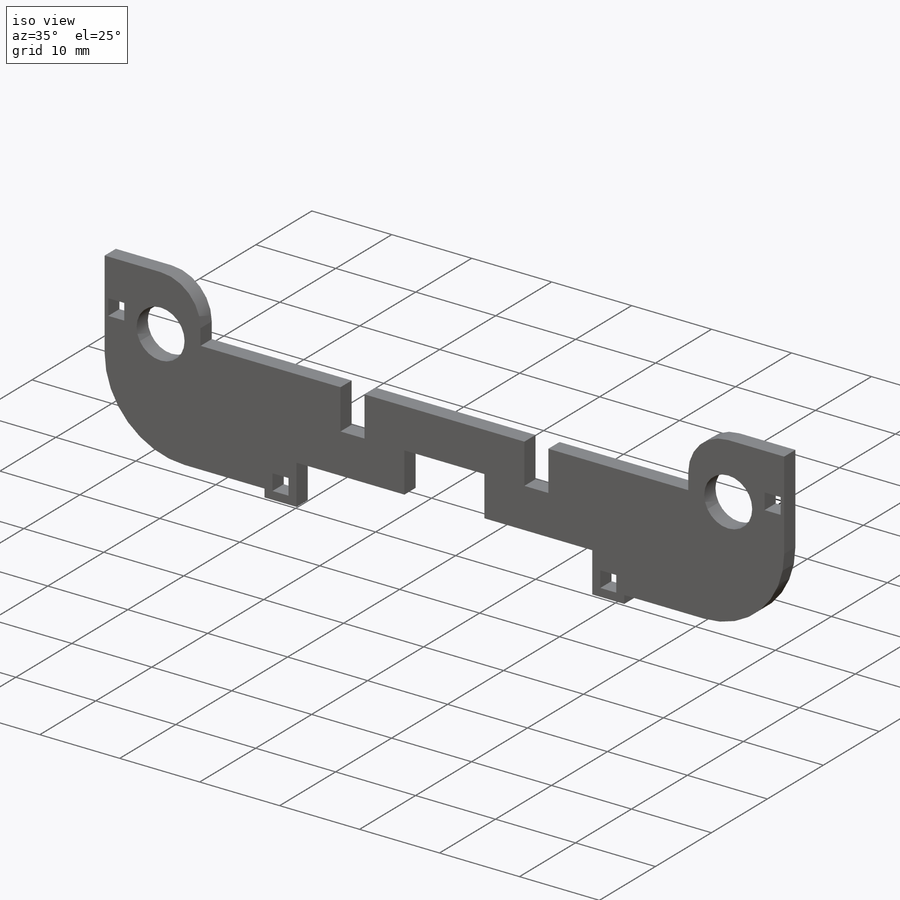
[diagram: iso view]
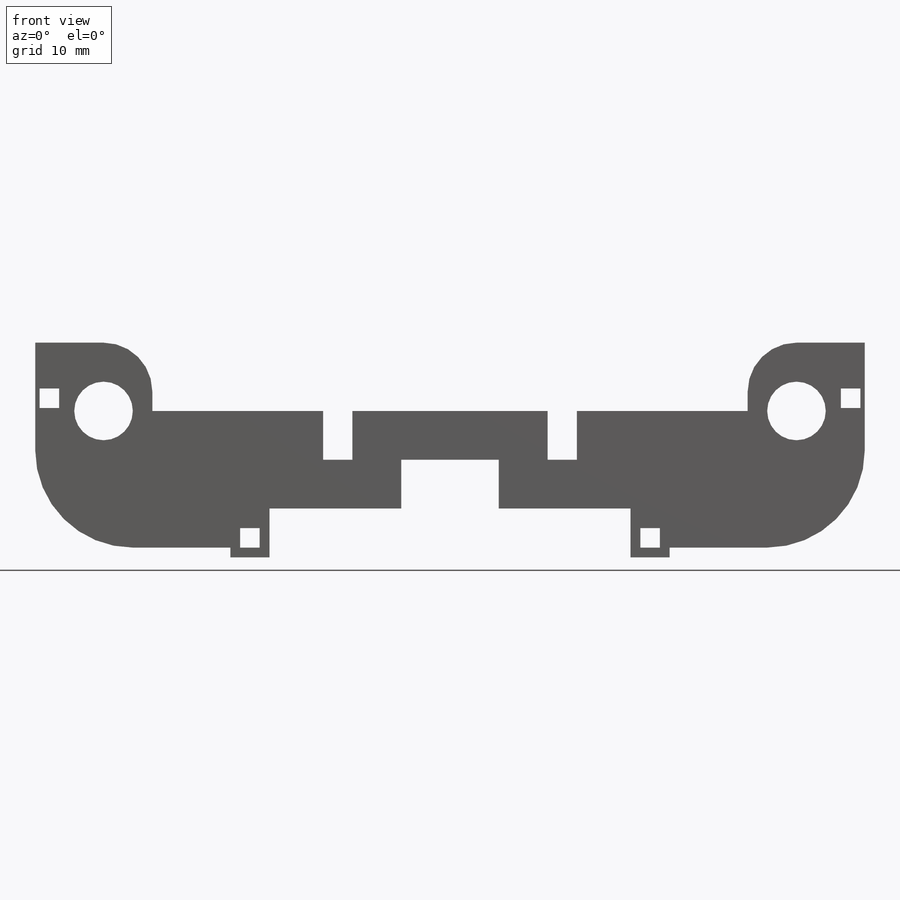
[diagram: front view]
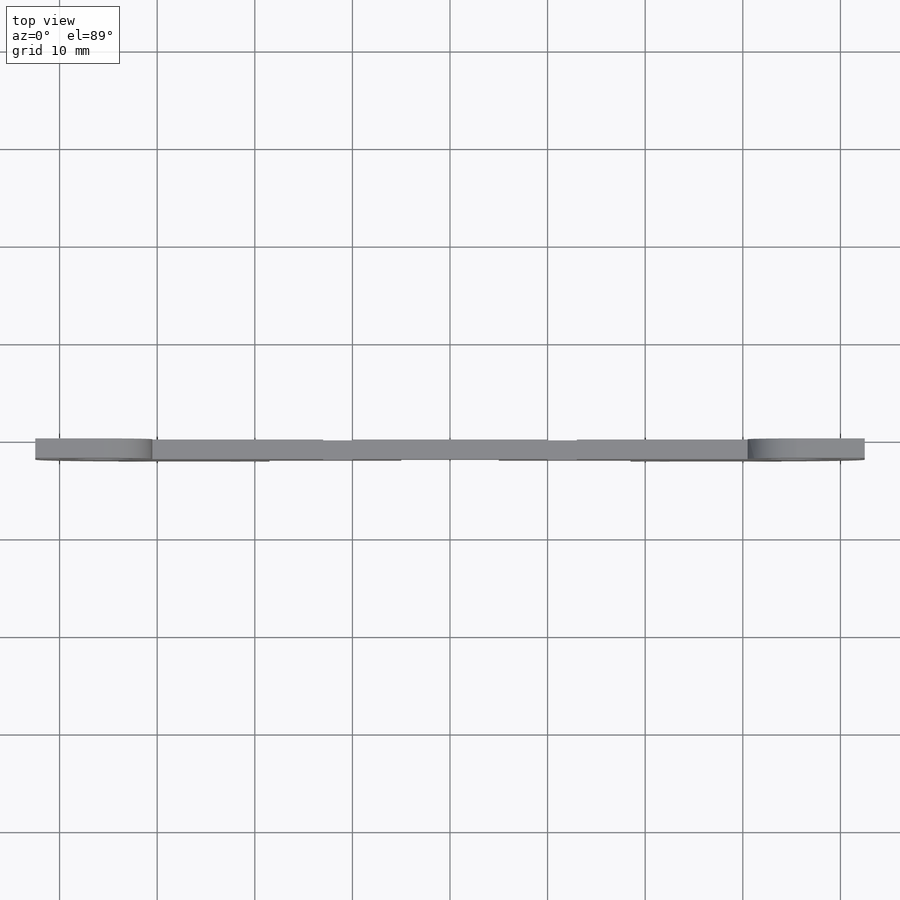
[diagram: top view]
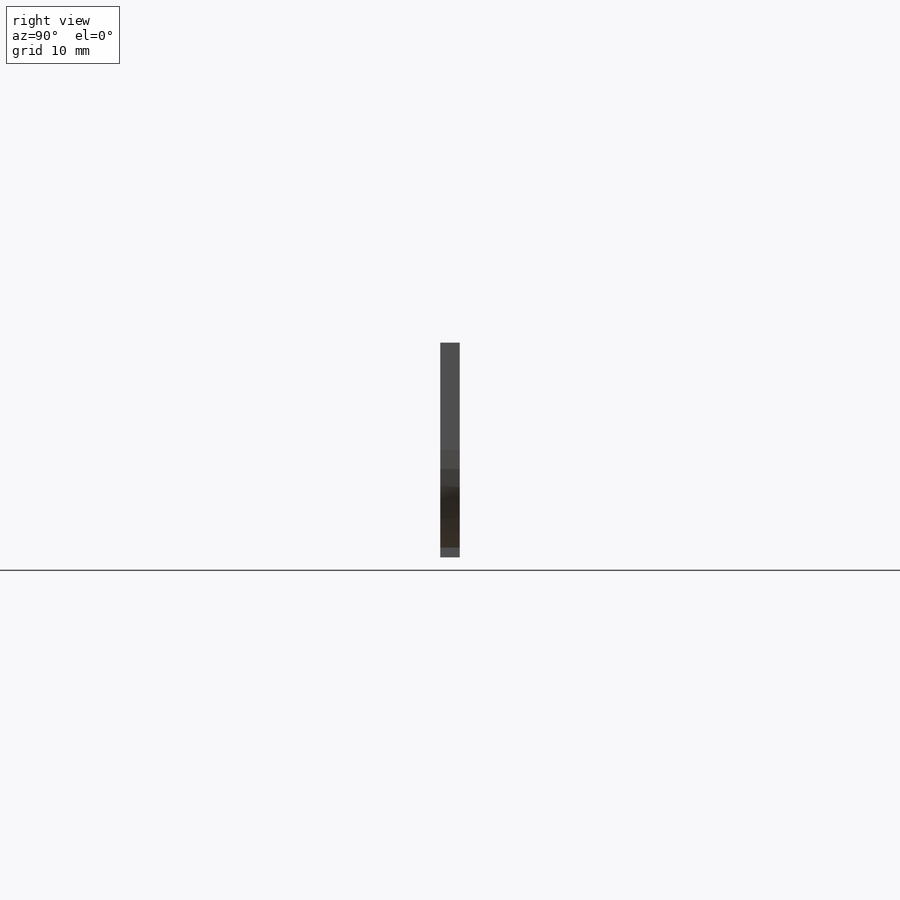
[diagram: right view]
SOLIDWORKS PART (.sldprt)
format: sldprt  version: not decoded by parser v0  size: 291,840 bytes
history: native  units: mm
features: fillet x4, material x1, sketch x1, extrude x1 (+11 scaffold rows collapsed)
feature tree (18):
  scaffold x11  (default folders/planes/origin — collapsed)
  material  "Material <not specified>"
  sketch  "Sketch1"  dims[c1.D5=~4.140905mm c1.D6=6.0mm c2.D5=6.0mm c2.D22=~5.756268mm c2.D23=6.0mm c2.D1=~27.288625mm c2.D2=~120.586222mm c3.D1=10.0mm c3.D2=71.0mm c3.D3=5.0mm c3.D4=26.0mm c3.D5=10.0mm c3.D7=7.0mm c3.D8=~1.619526mm c3.D9=~1.559544mm c4.D8=4.7mm c4.D9=0.45mm c4.D10=2.0mm c4.D11=10.0mm c4.D12=5.0mm c4.D13=20.0mm c4.D14=4.0mm c4.D15=~2.188172mm c4.D16=~1.950327mm c5.D15=2.0mm c5.D16=1.0mm c5.D17=1.0mm c5.D18=1.0mm c6.D15=23.0mm c6.D14=24.0mm c7.D15=4.0mm c7.D16=~1.696674mm c7.D17=~2.234644mm c8.D16=2.0mm c8.D17=1.0mm c8.D18=1.0mm c9.D17=4.0mm c9.D19=1.0mm c9.D20=1.0mm c9.D21=51.0mm c9.D5=20.0mm c10.D5=135.0deg c10.D21=4.0mm c10.D6=0.0mm c11.D21=5.0mm c11.D22=5.0mm c11.D24=0.0mm c11.D25=61.0mm]
  extrude  "Boss-Extrude2"  Depth=2mm
  fillet  "Fillet1"  Radius=10mm
  fillet  "Fillet2"  Radius=10mm
  fillet  "Fillet3"  Radius=5mm
  fillet  "Fillet4"  Radius=5mm
decode coverage: 6 of 6 modeling features carry decoded parameters
note: ~ marks probable driven/reference dimensions
note: suppression state not decoded; provenance and decode notes live in map.json
